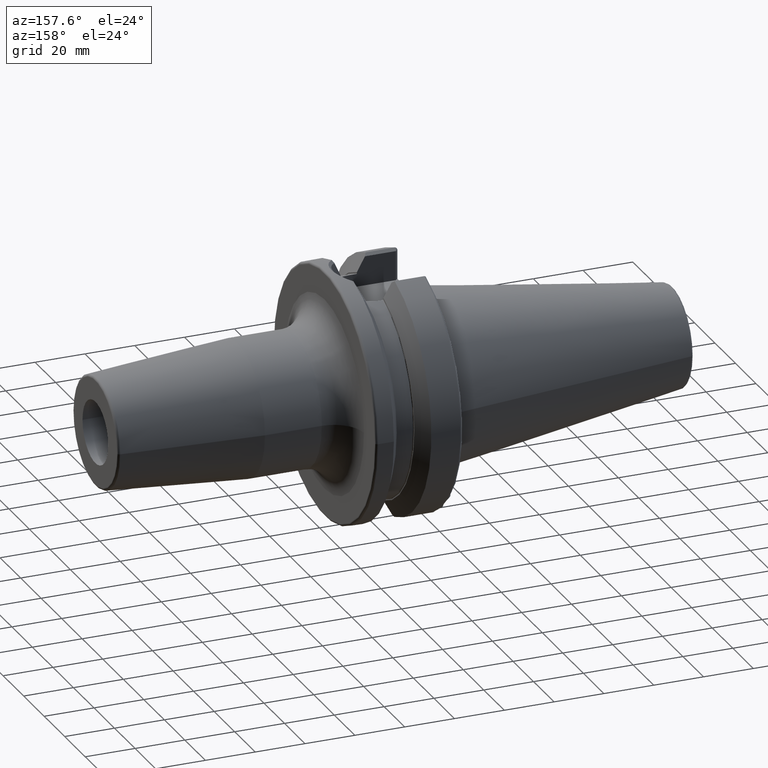
[diagram: clean part render]
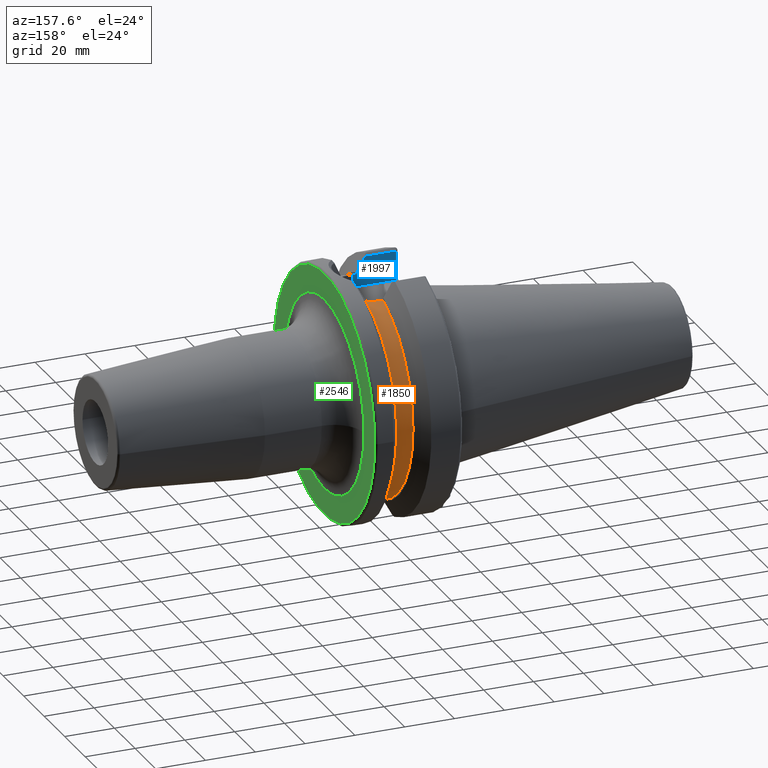
[diagram: same view with three faces highlighted in distinct colors, each labeled with its STEP entity id]
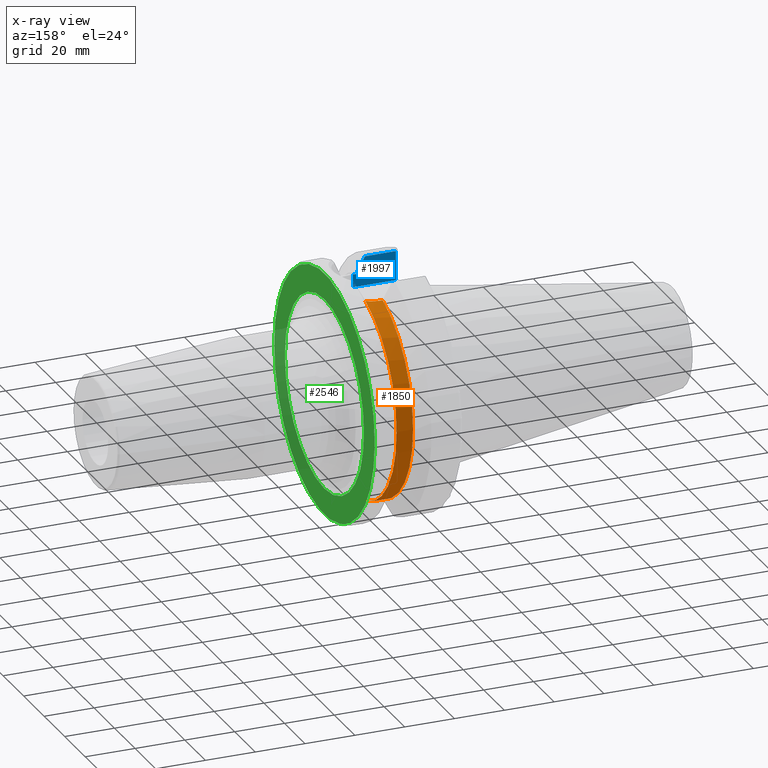
[diagram: x-ray of the same camera — body ghosted, the three highlighted faces saturated]
A machine part, auxiliary view with three faces highlighted in distinct colors.
The next image is the same camera in x-ray (body ghosted, the three faces saturated) — at least one of them is partly hidden behind the body in this view.
Their STEP definitions:

[orange] entity #1850 — the highlighted cylindrical surface (partial cylindrical patch) has radius 42.375 mm, axis along (1, 0, 0).
#186=DIRECTION('',(1.E0,0.E0,0.E0));
#187=VECTOR('',#186,1.435E0);
#188=CARTESIAN_POINT('',(1.99125E1,1.29025E1,-4.036293000700E1));
#189=LINE('',#188,#187);
#349=CARTESIAN_POINT('',(1.99125E1,0.E0,0.E0));
#350=DIRECTION('',(-1.E0,0.E0,0.E0));
#351=DIRECTION('',(0.E0,3.044837758112E-1,9.525175222891E-1));
#352=AXIS2_PLACEMENT_3D('',#349,#350,#351);
#354=CARTESIAN_POINT('',(2.13475E1,1.29025E1,-4.036293000700E1));
#355=CARTESIAN_POINT('',(2.193211835169E1,1.29025E1,-4.036293000700E1));
#356=CARTESIAN_POINT('',(2.309259987866E1,1.282394305612E1,-4.038817378856E1));
#357=CARTESIAN_POINT('',(2.482251458198E1,1.246756636177E1,-4.050035379602E1));
#358=CARTESIAN_POINT('',(2.593767013310E1,1.207328392825E1,-4.061943244291E1));
#359=CARTESIAN_POINT('',(2.64875E1,1.183447955129E1,-4.068888937720E1));
#361=CARTESIAN_POINT('',(2.64875E1,1.183447955129E1,4.068888937720E1));
#362=CARTESIAN_POINT('',(2.593767013310E1,1.207328392825E1,4.061943244291E1));
#363=CARTESIAN_POINT('',(2.482251458198E1,1.246756636177E1,4.050035379602E1));
#364=CARTESIAN_POINT('',(2.309259987866E1,1.282394305612E1,4.038817378856E1));
#365=CARTESIAN_POINT('',(2.193211835169E1,1.29025E1,4.036293000700E1));
#366=CARTESIAN_POINT('',(2.13475E1,1.29025E1,4.036293000700E1));
#448=CARTESIAN_POINT('',(2.64875E1,0.E0,0.E0));
#449=DIRECTION('',(-1.E0,0.E0,0.E0));
#450=DIRECTION('',(0.E0,2.792797534229E-1,9.602097788130E-1));
#451=AXIS2_PLACEMENT_3D('',#448,#449,#450);
#652=DIRECTION('',(1.E0,0.E0,0.E0));
#653=VECTOR('',#652,1.435E0);
#654=CARTESIAN_POINT('',(1.99125E1,1.29025E1,4.036293000700E1));
#655=LINE('',#654,#653);
#1188=CARTESIAN_POINT('',(1.99125E1,1.29025E1,4.036293000700E1));
#1189=CARTESIAN_POINT('',(1.99125E1,1.29025E1,-4.036293000700E1));
#1190=VERTEX_POINT('',#1188);
#1191=VERTEX_POINT('',#1189);
#1200=CARTESIAN_POINT('',(2.64875E1,1.183447955129E1,4.068888937720E1));
#1201=CARTESIAN_POINT('',(2.64875E1,1.183447955129E1,-4.068888937720E1));
#1202=VERTEX_POINT('',#1200);
#1203=VERTEX_POINT('',#1201);
#1322=CARTESIAN_POINT('',(2.13475E1,1.29025E1,4.036293000700E1));
#1323=VERTEX_POINT('',#1322);
#1330=CARTESIAN_POINT('',(2.13475E1,1.29025E1,-4.036293000700E1));
#1331=VERTEX_POINT('',#1330);
#1833=CARTESIAN_POINT('',(1.491626494021E1,0.E0,0.E0));
#1834=DIRECTION('',(1.E0,0.E0,0.E0));
#1835=DIRECTION('',(0.E0,-1.E0,0.E0));
#1836=AXIS2_PLACEMENT_3D('',#1833,#1834,#1835);
#1837=CYLINDRICAL_SURFACE('',#1836,4.2375E1);
#1838=ORIENTED_EDGE('',*,*,#1812,.T.);
#1839=ORIENTED_EDGE('',*,*,#1643,.T.);
#1841=ORIENTED_EDGE('',*,*,#1840,.T.);
#1843=ORIENTED_EDGE('',*,*,#1842,.F.);
#1845=ORIENTED_EDGE('',*,*,#1844,.T.);
#1847=ORIENTED_EDGE('',*,*,#1846,.F.);
#1848=EDGE_LOOP('',(#1838,#1839,#1841,#1843,#1845,#1847));
#1849=FACE_OUTER_BOUND('',#1848,.F.);
#1850=ADVANCED_FACE('',(#1849),#1837,.T.);
#353=CIRCLE('',#352,4.2375E1);
#360=B_SPLINE_CURVE_WITH_KNOTS('',3,(#354,#355,#356,#357,#358,#359),
.UNSPECIFIED.,.F.,.F.,(4,1,1,4),(0.E0,3.333333333333E-1,6.666666666667E-1,1.E0),
.UNSPECIFIED.);
#367=B_SPLINE_CURVE_WITH_KNOTS('',3,(#361,#362,#363,#364,#365,#366),
.UNSPECIFIED.,.F.,.F.,(4,1,1,4),(0.E0,3.333333333333E-1,6.666666666667E-1,1.E0),
.UNSPECIFIED.);
#452=CIRCLE('',#451,4.2375E1);
#1643=EDGE_CURVE('',#1191,#1331,#189,.T.);
#1812=EDGE_CURVE('',#1190,#1191,#353,.T.);
#1840=EDGE_CURVE('',#1331,#1203,#360,.T.);
#1842=EDGE_CURVE('',#1202,#1203,#452,.T.);
#1844=EDGE_CURVE('',#1202,#1323,#367,.T.);
#1846=EDGE_CURVE('',#1190,#1323,#655,.T.);

[blue] entity #1997 — the highlighted planar face has unit normal (0, -1, 0).
#468=DIRECTION('',(0.E0,0.E0,1.E0));
#469=VECTOR('',#468,5.162930007E0);
#470=CARTESIAN_POINT('',(2.13475E1,-1.29025E1,3.52E1));
#471=LINE('',#470,#469);
#529=DIRECTION('',(0.E0,0.E0,1.E0));
#530=VECTOR('',#529,4.678451531613E-1);
#531=CARTESIAN_POINT('',(1.96625E1,-1.29025E1,4.062531376802E1));
#532=LINE('',#531,#530);
#533=CARTESIAN_POINT('',(1.640508297825E1,-1.29025E1,4.697335042340E1));
#534=CARTESIAN_POINT('',(1.678800997375E1,-1.29025E1,4.628553610571E1));
#535=CARTESIAN_POINT('',(1.753988026520E1,-1.29025E1,4.493290409157E1));
#536=CARTESIAN_POINT('',(1.862508060803E1,-1.29025E1,4.297399674455E1));
#537=CARTESIAN_POINT('',(1.932130614689E1,-1.29025E1,4.171256941858E1));
#538=CARTESIAN_POINT('',(1.96625E1,-1.29025E1,4.109315892118E1));
#540=DIRECTION('',(-1.E0,0.E0,0.E0));
#541=VECTOR('',#540,1.240508297825E1);
#542=CARTESIAN_POINT('',(1.640508297825E1,-1.29025E1,4.697335042340E1));
#543=LINE('',#542,#541);
#544=DIRECTION('',(0.E0,0.E0,-1.E0));
#545=VECTOR('',#544,1.177335042340E1);
#546=CARTESIAN_POINT('',(4.E0,-1.29025E1,4.697335042340E1));
#547=LINE('',#546,#545);
#548=DIRECTION('',(1.E0,0.E0,0.E0));
#549=VECTOR('',#548,1.435E0);
#550=CARTESIAN_POINT('',(1.99125E1,-1.29025E1,4.036293000700E1));
#551=LINE('',#550,#549);
#552=CARTESIAN_POINT('',(1.96625E1,-1.29025E1,4.062531376802E1));
#553=CARTESIAN_POINT('',(1.96625E1,-1.29025E1,4.059802443585E1));
#554=CARTESIAN_POINT('',(1.967010312706E1,-1.29025E1,4.054571527488E1));
#555=CARTESIAN_POINT('',(1.970597803203E1,-1.29025E1,4.046933362101E1));
#556=CARTESIAN_POINT('',(1.976358989115E1,-1.29025E1,4.040921074747E1));
#557=CARTESIAN_POINT('',(1.983275140013E1,-1.29025E1,4.037231907874E1));
#558=CARTESIAN_POINT('',(1.988482223968E1,-1.29025E1,4.036293000700E1));
#559=CARTESIAN_POINT('',(1.99125E1,-1.29025E1,4.036293000700E1));
#675=DIRECTION('',(1.E0,0.E0,0.E0));
#676=VECTOR('',#675,1.73475E1);
#677=CARTESIAN_POINT('',(4.E0,-1.29025E1,3.52E1));
#678=LINE('',#677,#676);
#1177=CARTESIAN_POINT('',(1.96625E1,-1.29025E1,4.062531376802E1));
#1179=VERTEX_POINT('',#1177);
#1185=CARTESIAN_POINT('',(1.99125E1,-1.29025E1,4.036293000700E1));
#1187=VERTEX_POINT('',#1185);
#1220=CARTESIAN_POINT('',(1.96625E1,-1.29025E1,4.109315892118E1));
#1222=VERTEX_POINT('',#1220);
#1306=CARTESIAN_POINT('',(2.13475E1,-1.29025E1,3.52E1));
#1308=VERTEX_POINT('',#1306);
#1325=CARTESIAN_POINT('',(2.13475E1,-1.29025E1,4.036293000700E1));
#1326=VERTEX_POINT('',#1325);
#1327=VERTEX_POINT('',#533);
#1346=CARTESIAN_POINT('',(4.E0,-1.29025E1,4.697335042340E1));
#1347=CARTESIAN_POINT('',(4.E0,-1.29025E1,3.52E1));
#1348=VERTEX_POINT('',#1346);
#1349=VERTEX_POINT('',#1347);
#1979=CARTESIAN_POINT('',(2.8E0,-1.29025E1,3.52E1));
#1980=DIRECTION('',(0.E0,-1.E0,0.E0));
#1981=DIRECTION('',(1.E0,0.E0,0.E0));
#1982=AXIS2_PLACEMENT_3D('',#1979,#1980,#1981);
#1983=PLANE('',#1982);
#1984=ORIENTED_EDGE('',*,*,#1672,.T.);
#1985=ORIENTED_EDGE('',*,*,#1713,.F.);
#1987=ORIENTED_EDGE('',*,*,#1986,.T.);
#1989=ORIENTED_EDGE('',*,*,#1988,.T.);
#1991=ORIENTED_EDGE('',*,*,#1990,.T.);
#1992=ORIENTED_EDGE('',*,*,#1959,.T.);
#1993=ORIENTED_EDGE('',*,*,#1860,.F.);
#1994=ORIENTED_EDGE('',*,*,#1828,.F.);
#1995=EDGE_LOOP('',(#1984,#1985,#1987,#1989,#1991,#1992,#1993,#1994));
#1996=FACE_OUTER_BOUND('',#1995,.F.);
#1997=ADVANCED_FACE('',(#1996),#1983,.F.);
#539=B_SPLINE_CURVE_WITH_KNOTS('',3,(#533,#534,#535,#536,#537,#538),
.UNSPECIFIED.,.F.,.F.,(4,1,1,4),(0.E0,3.333333333333E-1,6.666666666667E-1,1.E0),
.UNSPECIFIED.);
#560=B_SPLINE_CURVE_WITH_KNOTS('',3,(#552,#553,#554,#555,#556,#557,#558,#559),
.UNSPECIFIED.,.F.,.F.,(4,1,1,1,1,4),(0.E0,2.E-1,4.E-1,6.E-1,8.E-1,1.E0),
.UNSPECIFIED.);
#1672=EDGE_CURVE('',#1179,#1222,#532,.T.);
#1713=EDGE_CURVE('',#1327,#1222,#539,.T.);
#1828=EDGE_CURVE('',#1179,#1187,#560,.T.);
#1860=EDGE_CURVE('',#1187,#1326,#551,.T.);
#1959=EDGE_CURVE('',#1308,#1326,#471,.T.);
#1986=EDGE_CURVE('',#1327,#1348,#543,.T.);
#1988=EDGE_CURVE('',#1348,#1349,#547,.T.);
#1990=EDGE_CURVE('',#1349,#1308,#678,.T.);

[green] entity #2546 — the highlighted planar face has unit normal (1, 0, 0).
#814=CARTESIAN_POINT('',(3.8E1,0.E0,0.E0));
#815=DIRECTION('',(1.E0,0.E0,0.E0));
#816=DIRECTION('',(0.E0,1.E0,0.E0));
#817=AXIS2_PLACEMENT_3D('',#814,#815,#816);
#829=CARTESIAN_POINT('',(3.8E1,0.E0,0.E0));
#830=DIRECTION('',(-1.E0,0.E0,0.E0));
#831=DIRECTION('',(0.E0,1.E0,0.E0));
#832=AXIS2_PLACEMENT_3D('',#829,#830,#831);
#834=CARTESIAN_POINT('',(3.8E1,0.E0,0.E0));
#835=DIRECTION('',(1.E0,0.E0,0.E0));
#836=DIRECTION('',(0.E0,-1.E0,0.E0));
#837=AXIS2_PLACEMENT_3D('',#834,#835,#836);
#839=CARTESIAN_POINT('',(3.8E1,0.E0,0.E0));
#840=DIRECTION('',(1.E0,0.E0,0.E0));
#841=DIRECTION('',(0.E0,1.E0,0.E0));
#842=AXIS2_PLACEMENT_3D('',#839,#840,#841);
#1302=CARTESIAN_POINT('',(3.8E1,4.89875E1,0.E0));
#1303=VERTEX_POINT('',#1302);
#1304=CARTESIAN_POINT('',(3.8E1,-4.89875E1,-1.199847701465E-14));
#1305=VERTEX_POINT('',#1304);
#1403=CARTESIAN_POINT('',(3.8E1,-3.85E1,0.E0));
#1404=CARTESIAN_POINT('',(3.8E1,3.85E1,0.E0));
#1405=VERTEX_POINT('',#1403);
#1406=VERTEX_POINT('',#1404);
#2531=CARTESIAN_POINT('',(3.8E1,0.E0,0.E0));
#2532=DIRECTION('',(1.E0,0.E0,0.E0));
#2533=DIRECTION('',(0.E0,-1.E0,0.E0));
#2534=AXIS2_PLACEMENT_3D('',#2531,#2532,#2533);
#2535=PLANE('',#2534);
#2536=ORIENTED_EDGE('',*,*,#2526,.T.);
#2537=ORIENTED_EDGE('',*,*,#2510,.F.);
#2538=EDGE_LOOP('',(#2536,#2537));
#2539=FACE_OUTER_BOUND('',#2538,.F.);
#2541=ORIENTED_EDGE('',*,*,#2540,.T.);
#2543=ORIENTED_EDGE('',*,*,#2542,.T.);
#2544=EDGE_LOOP('',(#2541,#2543));
#2545=FACE_BOUND('',#2544,.F.);
#2546=ADVANCED_FACE('',(#2539,#2545),#2535,.T.);
#818=CIRCLE('',#817,4.89875E1);
#833=CIRCLE('',#832,4.89875E1);
#838=CIRCLE('',#837,3.85E1);
#843=CIRCLE('',#842,3.85E1);
#2510=EDGE_CURVE('',#1303,#1305,#818,.T.);
#2526=EDGE_CURVE('',#1303,#1305,#833,.T.);
#2540=EDGE_CURVE('',#1405,#1406,#838,.T.);
#2542=EDGE_CURVE('',#1406,#1405,#843,.T.);